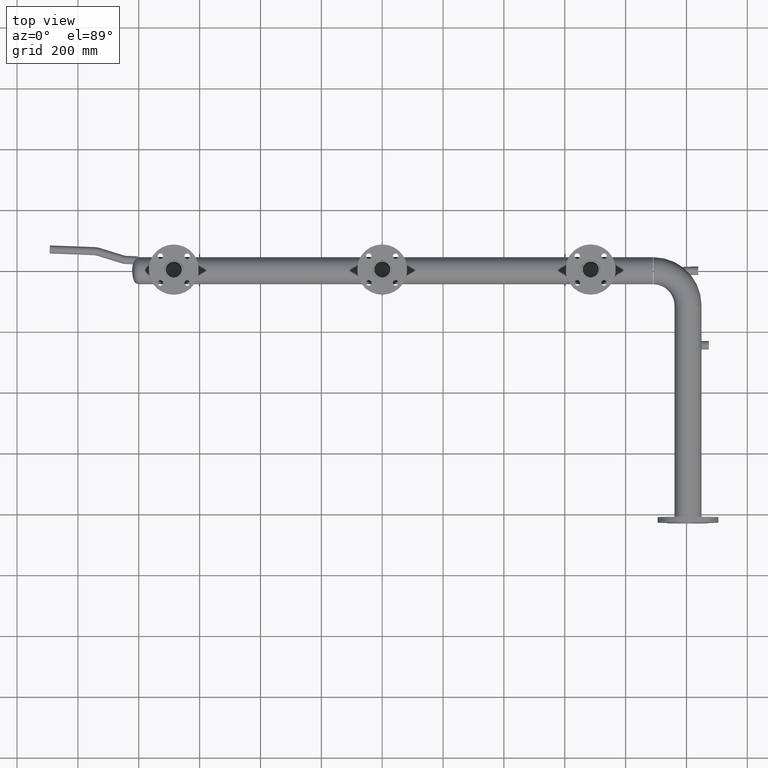
[diagram: clean part render]
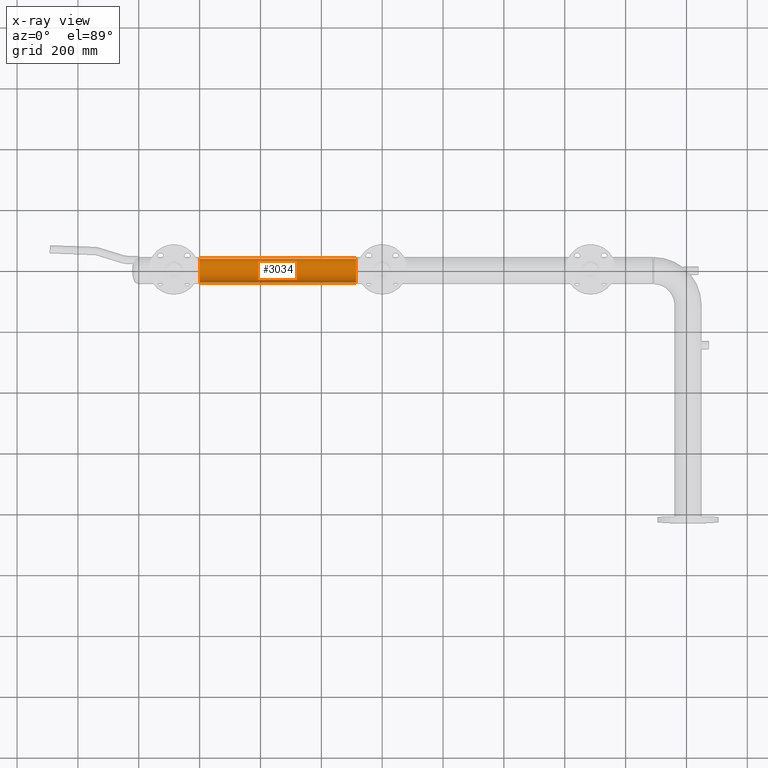
[diagram: x-ray — body ghosted, one internal face saturated and labeled with its STEP entity id]
A machine part, top view, then the same camera in x-ray: the body is ghosted and one INTERNAL B-rep face — a face not visible from any outside direction — is saturated and labeled: STEP entity #3034.
In plain terms, the highlighted cylindrical surface (edge-blend (fillet) strip) has radius 38.95 mm, axis along (1, 0, -0).
Its self-contained STEP definition (entity closure, byte-faithful):
#49 = VERTEX_POINT ( 'NONE', #1727 ) ;
#104 = ORIENTED_EDGE ( 'NONE', *, *, #3250, .T. ) ;
#108 = DIRECTION ( 'NONE',  ( 0.000000000000000000, -1.000000000000000000, 0.000000000000000000 ) ) ;
#616 = DIRECTION ( 'NONE',  ( 0.000000000000000000, -1.000000000000000000, 0.000000000000000000 ) ) ;
#731 = LINE ( 'NONE', #1341, #6409 ) ;
#972 = DIRECTION ( 'NONE',  ( 1.000000000000000000, 1.361513478024022673E-17, -5.755200308641385394E-66 ) ) ;
#1104 = VECTOR ( 'NONE', #972, 1000.000000000000000 ) ;
#1242 = FACE_OUTER_BOUND ( 'NONE', #3300, .T. ) ;
#1249 = CARTESIAN_POINT ( 'NONE',  ( -599.3000000000000682, -38.95000000000002416, 4.769999282678943171E-15 ) ) ;
#1341 = CARTESIAN_POINT ( 'NONE',  ( -599.3000000000000682, 38.95000000000000995, -2.091494006573643760E-63 ) ) ;
#1414 = LINE ( 'NONE', #3566, #1104 ) ;
#1727 = CARTESIAN_POINT ( 'NONE',  ( -599.3000000000000682, 38.95000000000000995, -3.569429445832751550E-63 ) ) ;
#1755 = DIRECTION ( 'NONE',  ( 1.000000000000000000, 1.361513478024022673E-17, -5.755200308641385394E-66 ) ) ;
#2107 = DIRECTION ( 'NONE',  ( -1.000000000000000000, -1.361513478024022673E-17, 5.755200308641385394E-66 ) ) ;
#2108 = DIRECTION ( 'NONE',  ( -1.000000000000000000, -1.361513478024022673E-17, 5.755200308641385394E-66 ) ) ;
#2203 = CARTESIAN_POINT ( 'NONE',  ( -599.3000000000000682, -6.992733223131379957E-15, -2.091494006573643760E-63 ) ) ;
#2214 = CARTESIAN_POINT ( 'NONE',  ( -85.70000000000000284, -1.540743955509788682E-30, -5.047364885091860149E-63 ) ) ;
#2491 = DIRECTION ( 'NONE',  ( 0.000000000000000000, 1.000000000000000000, 0.000000000000000000 ) ) ;
#3034 = ADVANCED_FACE ( 'NONE', ( #1242 ), #5344, .F. ) ;
#3171 = CIRCLE ( 'NONE', #5194, 38.95000000000001705 ) ;
#3250 = EDGE_CURVE ( 'NONE', #49, #5912, #6089, .T. ) ;
#3300 = EDGE_LOOP ( 'NONE', ( #104, #4205, #3670, #3369 ) ) ;
#3369 = ORIENTED_EDGE ( 'NONE', *, *, #5071, .F. ) ;
#3540 = CARTESIAN_POINT ( 'NONE',  ( -85.70000000000000284, -38.95000000000001705, 4.769999282678943171E-15 ) ) ;
#3566 = CARTESIAN_POINT ( 'NONE',  ( -599.3000000000000682, -38.95000000000002416, 4.769999282678943171E-15 ) ) ;
#3634 = AXIS2_PLACEMENT_3D ( 'NONE', #2203, #5214, #2491 ) ;
#3670 = ORIENTED_EDGE ( 'NONE', *, *, #3876, .F. ) ;
#3685 = CARTESIAN_POINT ( 'NONE',  ( -599.3000000000000682, -6.992733223131379957E-15, -2.091494006573643760E-63 ) ) ;
#3876 = EDGE_CURVE ( 'NONE', #4237, #4039, #3171, .T. ) ;
#4039 = VERTEX_POINT ( 'NONE', #3540 ) ;
#4205 = ORIENTED_EDGE ( 'NONE', *, *, #6077, .T. ) ;
#4237 = VERTEX_POINT ( 'NONE', #5723 ) ;
#5071 = EDGE_CURVE ( 'NONE', #49, #4237, #731, .T. ) ;
#5194 = AXIS2_PLACEMENT_3D ( 'NONE', #2214, #2108, #616 ) ;
#5214 = DIRECTION ( 'NONE',  ( 1.000000000000000000, 1.361513478024022673E-17, -5.755200308641385394E-66 ) ) ;
#5344 = CYLINDRICAL_SURFACE ( 'NONE', #3634, 38.95000000000001705 ) ;
#5553 = AXIS2_PLACEMENT_3D ( 'NONE', #3685, #2107, #108 ) ;
#5723 = CARTESIAN_POINT ( 'NONE',  ( -85.70000000000000284, 38.95000000000001705, -3.569429445832751550E-63 ) ) ;
#5912 = VERTEX_POINT ( 'NONE', #1249 ) ;
#6077 = EDGE_CURVE ( 'NONE', #5912, #4039, #1414, .T. ) ;
#6089 = CIRCLE ( 'NONE', #5553, 38.95000000000001705 ) ;
#6409 = VECTOR ( 'NONE', #1755, 1000.000000000000000 ) ;